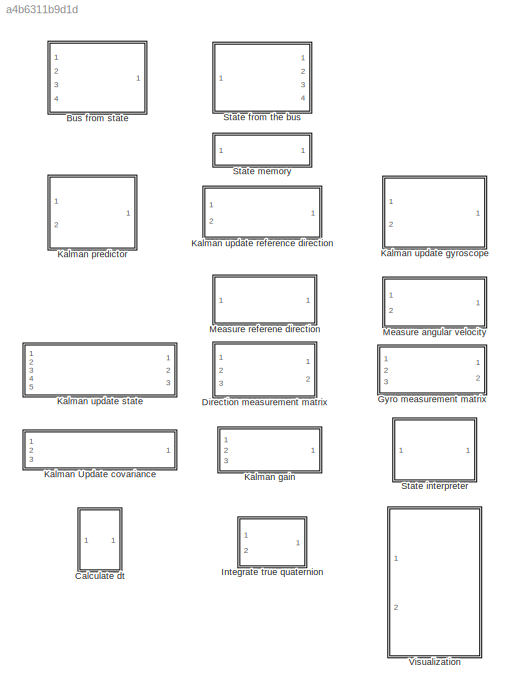
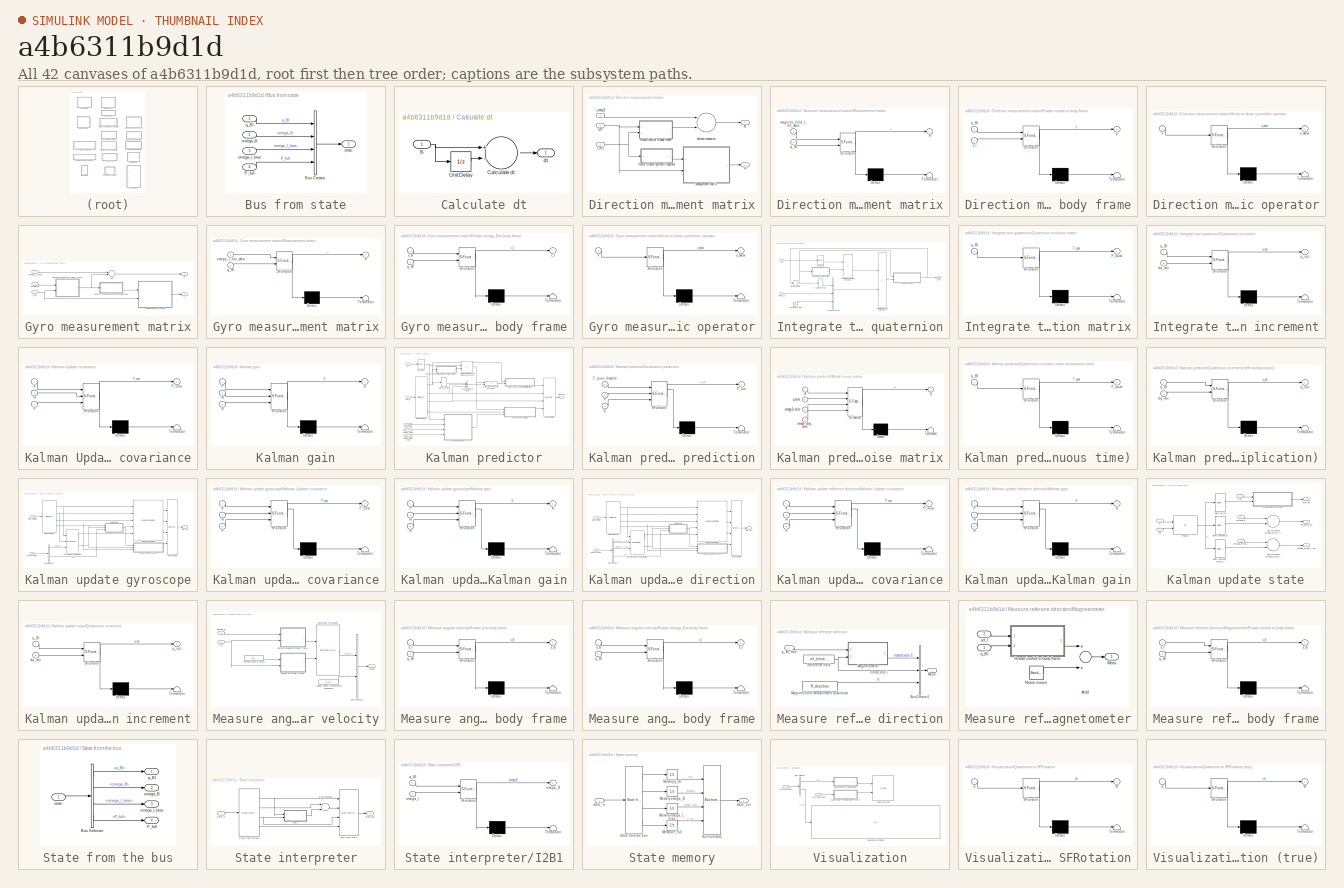
[diagram: thumbnail index - all 42 canvases of the model, root first then tree order]
MODEL slx_a4b6311b9d1d
KIND library
BLOCK [SubSystem] Bus from state
  Ports = [4, 1]
  RequestExecContextInheritance = off
BLOCK [BusCreator] Bus from state/Bus Creator
  DisplayOption = bar
  Ports = [4, 1]
BLOCK [Inport] Bus from state/P_full
  IconDisplay = Port number
  Port = 4
BLOCK [Inport] Bus from state/omega_B
  IconDisplay = Port number
  Port = 2
BLOCK [Inport] Bus from state/omega_I_bias
  IconDisplay = Port number
  Port = 3
BLOCK [Inport] Bus from state/q_BI
  IconDisplay = Port number
BLOCK [Outport] Bus from state/state
  IconDisplay = Port number
BLOCK [SubSystem] Calculate dt
  Ports = [1, 1]
  RequestExecContextInheritance = off
BLOCK [Sum] Calculate dt/Calculate dt
  InputSameDT = off
  Inputs = +-
  OutDataTypeStr = Inherit: Inherit via internal rule
  Ports = [2, 1]
  SaturateOnIntegerOverflow = off
BLOCK [UnitDelay] Calculate dt/Unit Delay
  InputProcessing = Elements as channels (sample based)
  SampleTime = -1
BLOCK [Outport] Calculate dt/dt
  IconDisplay = Port number
BLOCK [Inport] Calculate dt/ts
  IconDisplay = Port number
BLOCK [SubSystem] Direction measurement matrix
  Ports = [3, 2]
  RequestExecContextInheritance = off
BLOCK [Outport] Direction measurement matrix/H
  IconDisplay = Port number
  Port = 2
BLOCK [SubSystem] Direction measurement matrix/Measurement matrix
  ErrorFcn = Stateflow.Translate.translate
  PermitHierarchicalResolution = ExplicitOnly
  Ports = [2, 1]
  RequestExecContextInheritance = off
  SFBlockType = MATLAB Function
  TreatAsAtomicUnit = on
BLOCK [Demux] Direction measurement matrix/Measurement matrix/ Demux 
  Outputs = 1
  Ports = [1, 1]
BLOCK [S-Function] Direction measurement matrix/Measurement matrix/ SFunction 
  EnableBusSupport = on
  FunctionName = sf_sfun
  PortCounts = [2 2]
  Ports = [2, 2]
  Tag = Stateflow S-Function lib_gyro_fusion 17
BLOCK [Terminator] Direction measurement matrix/Measurement matrix/ Terminator 
BLOCK [Outport] Direction measurement matrix/Measurement matrix/H
  IconDisplay = Port number
BLOCK [Inport] Direction measurement matrix/Measurement matrix/magnetic_field_I_ref_skew
  IconDisplay = Port number
BLOCK [Inport] Direction measurement matrix/Measurement matrix/q_BI
  IconDisplay = Port number
  Port = 2
BLOCK [SubSystem] Direction measurement matrix/Rotate inertial to body frame
  ErrorFcn = Stateflow.Translate.translate
  PermitHierarchicalResolution = ExplicitOnly
  Ports = [2, 1]
  RequestExecContextInheritance = off
  SFBlockType = MATLAB Function
  TreatAsAtomicUnit = on
BLOCK [Demux] Direction measurement matrix/Rotate inertial to body frame/ Demux 
  Outputs = 1
  Ports = [1, 1]
BLOCK [S-Function] Direction measurement matrix/Rotate inertial to body frame/ SFunction 
  EnableBusSupport = on
  FunctionName = sf_sfun
  PortCounts = [2 2]
  Ports = [2, 2]
  Tag = Stateflow S-Function lib_gyro_fusion 7
BLOCK [Terminator] Direction measurement matrix/Rotate inertial to body frame/ Terminator 
BLOCK [Inport] Direction measurement matrix/Rotate inertial to body frame/q_BI
  IconDisplay = Port number
BLOCK [Inport] Direction measurement matrix/Rotate inertial to body frame/x_I
  IconDisplay = Port number
  Port = 2
BLOCK [Outport] Direction measurement matrix/Rotate inertial to body frame/y
  IconDisplay = Port number
BLOCK [SubSystem] Direction measurement matrix/Vector to skew symmetric operator
  ErrorFcn = Stateflow.Translate.translate
  PermitHierarchicalResolution = ExplicitOnly
  Ports = [1, 1]
  RequestExecContextInheritance = off
  SFBlockType = MATLAB Function
  TreatAsAtomicUnit = on
BLOCK [Demux] Direction measurement matrix/Vector to skew symmetric operator/ Demux 
  Outputs = 1
  Ports = [1, 1]
BLOCK [S-Function] Direction measurement matrix/Vector to skew symmetric operator/ SFunction 
  EnableBusSupport = on
  FunctionName = sf_sfun
  PortCounts = [1 2]
  Ports = [1, 2]
  Tag = Stateflow S-Function lib_gyro_fusion 8
BLOCK [Terminator] Direction measurement matrix/Vector to skew symmetric operator/ Terminator 
BLOCK [Inport] Direction measurement matrix/Vector to skew symmetric operator/v
  IconDisplay = Port number
BLOCK [Outport] Direction measurement matrix/Vector to skew symmetric operator/v_skew
  IconDisplay = Port number
BLOCK [Outport] Direction measurement matrix/dz
  IconDisplay = Port number
BLOCK [Sum] Direction measurement matrix/kalman innovation
  InputSameDT = off
  Inputs = +-
  OutDataTypeStr = Inherit: Inherit via internal rule
  Ports = [2, 1]
  SaturateOnIntegerOverflow = off
BLOCK [Inport] Direction measurement matrix/q_BI
  IconDisplay = Port number
BLOCK [Inport] Direction measurement matrix/r_meas_B
  IconDisplay = Port number
  Port = 2
BLOCK [Inport] Direction measurement matrix/r_ref_I
  IconDisplay = Port number
  Port = 3
BLOCK [SubSystem] Gyro measurement matrix
  Ports = [3, 2]
  RequestExecContextInheritance = off
BLOCK [Sum] Gyro measurement matrix/Add
  InputSameDT = off
  Inputs = +-
  OutDataTypeStr = Inherit: Inherit via internal rule
  Ports = [2, 1]
  SaturateOnIntegerOverflow = off
BLOCK [Outport] Gyro measurement matrix/H
  IconDisplay = Port number
  Port = 2
BLOCK [SubSystem] Gyro measurement matrix/Measurement matrix
  ErrorFcn = Stateflow.Translate.translate
  PermitHierarchicalResolution = ExplicitOnly
  Ports = [2, 1]
  RequestExecContextInheritance = off
  SFBlockType = MATLAB Function
  TreatAsAtomicUnit = on
BLOCK [Demux] Gyro measurement matrix/Measurement matrix/ Demux 
  Outputs = 1
  Ports = [1, 1]
BLOCK [S-Function] Gyro measurement matrix/Measurement matrix/ SFunction 
  EnableBusSupport = on
  FunctionName = sf_sfun
  PortCounts = [2 2]
  Ports = [2, 2]
  Tag = Stateflow S-Function lib_gyro_fusion 13
BLOCK [Terminator] Gyro measurement matrix/Measurement matrix/ Terminator 
BLOCK [Outport] Gyro measurement matrix/Measurement matrix/H
  IconDisplay = Port number
BLOCK [Inport] Gyro measurement matrix/Measurement matrix/omega_I_hat_skew
  IconDisplay = Port number
BLOCK [Inport] Gyro measurement matrix/Measurement matrix/q_BI
  IconDisplay = Port number
  Port = 2
BLOCK [SubSystem] Gyro measurement matrix/Rotate omega_B to body frame
  ErrorFcn = Stateflow.Translate.translate
  PermitHierarchicalResolution = ExplicitOnly
  Ports = [2, 1]
  RequestExecContextInheritance = off
  SFBlockType = MATLAB Function
  TreatAsAtomicUnit = on
BLOCK [Demux] Gyro measurement matrix/Rotate omega_B to body frame/ Demux 
  Outputs = 1
  Ports = [1, 1]
BLOCK [S-Function] Gyro measurement matrix/Rotate omega_B to body frame/ SFunction 
  EnableBusSupport = on
  FunctionName = sf_sfun
  PortCounts = [2 2]
  Ports = [2, 2]
  Tag = Stateflow S-Function lib_gyro_fusion 14
BLOCK [Terminator] Gyro measurement matrix/Rotate omega_B to body frame/ Terminator 
BLOCK [Inport] Gyro measurement matrix/Rotate omega_B to body frame/q_BI
  IconDisplay = Port number
  Port = 2
BLOCK [Inport] Gyro measurement matrix/Rotate omega_B to body frame/x_B
  IconDisplay = Port number
BLOCK [Outport] Gyro measurement matrix/Rotate omega_B to body frame/x_I
  IconDisplay = Port number
BLOCK [SubSystem] Gyro measurement matrix/Vector to skew symmetric operator
  ErrorFcn = Stateflow.Translate.translate
  PermitHierarchicalResolution = ExplicitOnly
  Ports = [1, 1]
  RequestExecContextInheritance = off
  SFBlockType = MATLAB Function
  TreatAsAtomicUnit = on
BLOCK [Demux] Gyro measurement matrix/Vector to skew symmetric operator/ Demux 
  Outputs = 1
  Ports = [1, 1]
BLOCK [S-Function] Gyro measurement matrix/Vector to skew symmetric operator/ SFunction 
  EnableBusSupport = on
  FunctionName = sf_sfun
  PortCounts = [1 2]
  Ports = [1, 2]
  Tag = Stateflow S-Function lib_gyro_fusion 15
BLOCK [Terminator] Gyro measurement matrix/Vector to skew symmetric operator/ Terminator 
BLOCK [Inport] Gyro measurement matrix/Vector to skew symmetric operator/v
  IconDisplay = Port number
BLOCK [Outport] Gyro measurement matrix/Vector to skew symmetric operator/v_skew
  IconDisplay = Port number
BLOCK [Outport] Gyro measurement matrix/dz
  IconDisplay = Port number
BLOCK [Inport] Gyro measurement matrix/omega_B
  IconDisplay = Port number
  Port = 2
BLOCK [Inport] Gyro measurement matrix/omega_I_meas
  IconDisplay = Port number
  Port = 3
BLOCK [Inport] Gyro measurement matrix/q_BI
  IconDisplay = Port number
BLOCK [SubSystem] Integrate true quaternion
  Ports = [2, 1]
  RequestExecContextInheritance = off
BLOCK [Reference] Integrate true quaternion/Calculate dt  REF=lib_gyro_fusion/Calculate dt  (lib defined in slx_a4b6311b9d1d)
  Ports = [1, 1]
  SourceBlock = lib_gyro_fusion/Calculate dt
  SourceType = SubSystem
BLOCK [Memory] Integrate true quaternion/Memory q_BI true
  X0 = q_BI_init
BLOCK [SubSystem] Integrate true quaternion/Quaternion evolution matrix
  ErrorFcn = Stateflow.Translate.translate
  PermitHierarchicalResolution = ExplicitOnly
  Ports = [1, 1]
  RequestExecContextInheritance = off
  SFBlockType = MATLAB Function
  TreatAsAtomicUnit = on
BLOCK [Demux] Integrate true quaternion/Quaternion evolution matrix/ Demux 
  Outputs = 1
  Ports = [1, 1]
BLOCK [S-Function] Integrate true quaternion/Quaternion evolution matrix/ SFunction 
  EnableBusSupport = on
  FunctionName = sf_sfun
  PortCounts = [1 2]
  Ports = [1, 2]
  Tag = Stateflow S-Function lib_gyro_fusion 4
BLOCK [Terminator] Integrate true quaternion/Quaternion evolution matrix/ Terminator 
BLOCK [Outport] Integrate true quaternion/Quaternion evolution matrix/F_quat
  IconDisplay = Port number
BLOCK [Inport] Integrate true quaternion/Quaternion evolution matrix/q_BI
  IconDisplay = Port number
BLOCK [SubSystem] Integrate true quaternion/Quaternion increment
  ErrorFcn = Stateflow.Translate.translate
  PermitHierarchicalResolution = ExplicitOnly
  Ports = [2, 1]
  RequestExecContextInheritance = off
  SFBlockType = MATLAB Function
  TreatAsAtomicUnit = on
BLOCK [Demux] Integrate true quaternion/Quaternion increment/ Demux 
  Outputs = 1
  Ports = [1, 1]
BLOCK [S-Function] Integrate true quaternion/Quaternion increment/ SFunction 
  EnableBusSupport = on
  FunctionName = sf_sfun
  PortCounts = [2 2]
  Ports = [2, 2]
  Tag = Stateflow S-Function lib_gyro_fusion 5
BLOCK [Terminator] Integrate true quaternion/Quaternion increment/ Terminator 
BLOCK [Inport] Integrate true quaternion/Quaternion increment/dq_vec
  IconDisplay = Port number
  Port = 2
BLOCK [Inport] Integrate true quaternion/Quaternion increment/q_BI
  IconDisplay = Port number
BLOCK [Outport] Integrate true quaternion/Quaternion increment/q_out
  IconDisplay = Port number
BLOCK [Product] Integrate true quaternion/Quaternion vector part increment
  InputSameDT = off
  Multiplication = Matrix(*)
  OutDataTypeStr = Inherit: Inherit via internal rule
  Ports = [2, 1]
  RndMeth = Floor
  SaturateOnIntegerOverflow = off
BLOCK [Product] Integrate true quaternion/Quaternion vector part increment1
  InputSameDT = off
  OutDataTypeStr = Inherit: Inherit via internal rule
  Ports = [2, 1]
  RndMeth = Floor
  SaturateOnIntegerOverflow = off
BLOCK [Selector] Integrate true quaternion/Select q_vector
  IndexOptions = Starting index (dialog)
  Indices = 2
  InputPortWidth = 4
  OutputSizes = 3
  Ports = [1, 1]
BLOCK [Concatenate] Integrate true quaternion/Vector Concatenate
  NumInputs = 3
  Ports = [3, 1]
BLOCK [Inport] Integrate true quaternion/omega_B
  IconDisplay = Port number
  Port = 2
BLOCK [Outport] Integrate true quaternion/q_BI
  IconDisplay = Port number
BLOCK [Inport] Integrate true quaternion/ts
  IconDisplay = Port number
BLOCK [Constant] Integrate true quaternion/zero omega_I_bias
  Value = [0; 0; 0]
BLOCK [SubSystem] Kalman Update covariance
  ErrorFcn = Stateflow.Translate.translate
  PermitHierarchicalResolution = ExplicitOnly
  Ports = [3, 1]
  RequestExecContextInheritance = off
  SFBlockType = MATLAB Function
  TreatAsAtomicUnit = on
BLOCK [Demux] Kalman Update covariance/ Demux 
  Outputs = 1
  Ports = [1, 1]
BLOCK [S-Function] Kalman Update covariance/ SFunction 
  EnableBusSupport = on
  FunctionName = sf_sfun
  PortCounts = [3 2]
  Ports = [3, 2]
  Tag = Stateflow S-Function lib_gyro_fusion 2
BLOCK [Terminator] Kalman Update covariance/ Terminator 
BLOCK [Inport] Kalman Update covariance/H
  IconDisplay = Port number
  Port = 2
BLOCK [Inport] Kalman Update covariance/K
  IconDisplay = Port number
BLOCK [Inport] Kalman Update covariance/P
  IconDisplay = Port number
  Port = 3
BLOCK [Outport] Kalman Update covariance/P_new
  IconDisplay = Port number
BLOCK [SubSystem] Kalman gain
  ErrorFcn = Stateflow.Translate.translate
  PermitHierarchicalResolution = ExplicitOnly
  Ports = [3, 1]
  RequestExecContextInheritance = off
  SFBlockType = MATLAB Function
  TreatAsAtomicUnit = on
BLOCK [Demux] Kalman gain/ Demux 
  Outputs = 1
  Ports = [1, 1]
BLOCK [S-Function] Kalman gain/ SFunction 
  EnableBusSupport = on
  FunctionName = sf_sfun
  PortCounts = [3 2]
  Ports = [3, 2]
  Tag = Stateflow S-Function lib_gyro_fusion 18
BLOCK [Terminator] Kalman gain/ Terminator 
BLOCK [Inport] Kalman gain/H
  IconDisplay = Port number
  Port = 2
BLOCK [Outport] Kalman gain/K
  IconDisplay = Port number
BLOCK [Inport] Kalman gain/P
  IconDisplay = Port number
BLOCK [Inport] Kalman gain/R
  IconDisplay = Port number
  Port = 3
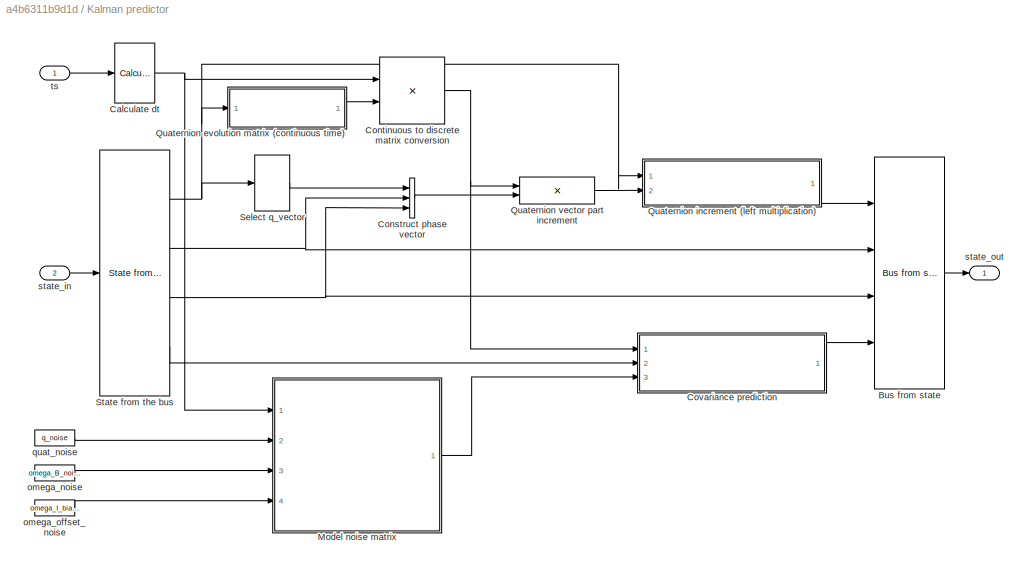
BLOCK [SubSystem] Kalman predictor
  Ports = [2, 1]
  RequestExecContextInheritance = off
BLOCK [Reference] Kalman predictor/Bus from state  REF=lib_gyro_fusion/Bus from state  (lib defined in slx_a4b6311b9d1d)
  Ports = [4, 1]
  SourceBlock = lib_gyro_fusion/Bus from state
  SourceType = SubSystem
BLOCK [Reference] Kalman predictor/Calculate dt  REF=lib_gyro_fusion/Calculate dt  (lib defined in slx_a4b6311b9d1d)
  Ports = [1, 1]
  SourceBlock = lib_gyro_fusion/Calculate dt
  SourceType = SubSystem
BLOCK [Concatenate] Kalman predictor/Construct phase vector
  NumInputs = 3
  Ports = [3, 1]
BLOCK [Product] Kalman predictor/Continuous to discrete matrix conversion
  InputSameDT = off
  OutDataTypeStr = Inherit: Inherit via internal rule
  Ports = [2, 1]
  RndMeth = Floor
  SaturateOnIntegerOverflow = off
BLOCK [SubSystem] Kalman predictor/Covariance prediction
  ErrorFcn = Stateflow.Translate.translate
  PermitHierarchicalResolution = ExplicitOnly
  Ports = [3, 1]
  RequestExecContextInheritance = off
  SFBlockType = MATLAB Function
  TreatAsAtomicUnit = on
BLOCK [Demux] Kalman predictor/Covariance prediction/ Demux 
  Outputs = 1
  Ports = [1, 1]
BLOCK [S-Function] Kalman predictor/Covariance prediction/ SFunction 
  EnableBusSupport = on
  FunctionName = sf_sfun
  PortCounts = [3 2]
  Ports = [3, 2]
  Tag = Stateflow S-Function lib_gyro_fusion 1
BLOCK [Terminator] Kalman predictor/Covariance prediction/ Terminator 
BLOCK [Inport] Kalman predictor/Covariance prediction/F_quat_discrete
  IconDisplay = Port number
BLOCK [Inport] Kalman predictor/Covariance prediction/P
  IconDisplay = Port number
  Port = 2
BLOCK [Outport] Kalman predictor/Covariance prediction/P_out
  IconDisplay = Port number
BLOCK [Inport] Kalman predictor/Covariance prediction/Q
  IconDisplay = Port number
  Port = 3
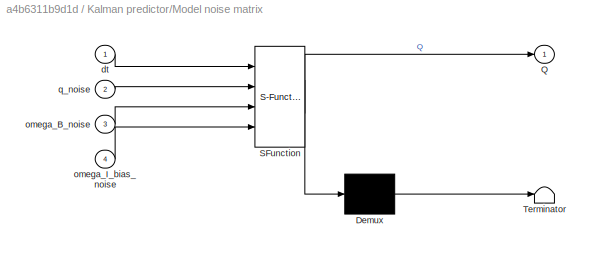
BLOCK [SubSystem] Kalman predictor/Model noise matrix
  ErrorFcn = Stateflow.Translate.translate
  PermitHierarchicalResolution = ExplicitOnly
  Ports = [4, 1]
  RequestExecContextInheritance = off
  SFBlockType = MATLAB Function
  TreatAsAtomicUnit = on
BLOCK [Demux] Kalman predictor/Model noise matrix/ Demux 
  Outputs = 1
  Ports = [1, 1]
BLOCK [S-Function] Kalman predictor/Model noise matrix/ SFunction 
  EnableBusSupport = on
  FunctionName = sf_sfun
  PortCounts = [4 2]
  Ports = [4, 2]
  Tag = Stateflow S-Function lib_gyro_fusion 3
BLOCK [Terminator] Kalman predictor/Model noise matrix/ Terminator 
BLOCK [Outport] Kalman predictor/Model noise matrix/Q
  IconDisplay = Port number
BLOCK [Inport] Kalman predictor/Model noise matrix/dt
  IconDisplay = Port number
BLOCK [Inport] Kalman predictor/Model noise matrix/omega_B_noise
  IconDisplay = Port number
  Port = 3
BLOCK [Inport] Kalman predictor/Model noise matrix/omega_I_bias_noise
  IconDisplay = Port number
  Port = 4
BLOCK [Inport] Kalman predictor/Model noise matrix/q_noise
  IconDisplay = Port number
  Port = 2
BLOCK [SubSystem] Kalman predictor/Quaternion evolution matrix (continuous time)
  ErrorFcn = Stateflow.Translate.translate
  PermitHierarchicalResolution = ExplicitOnly
  Ports = [1, 1]
  RequestExecContextInheritance = off
  SFBlockType = MATLAB Function
  TreatAsAtomicUnit = on
BLOCK [Demux] Kalman predictor/Quaternion evolution matrix (continuous time)/ Demux 
  Outputs = 1
  Ports = [1, 1]
BLOCK [S-Function] Kalman predictor/Quaternion evolution matrix (continuous time)/ SFunction 
  EnableBusSupport = on
  FunctionName = sf_sfun
  PortCounts = [1 2]
  Ports = [1, 2]
  Tag = Stateflow S-Function lib_gyro_fusion 11
BLOCK [Terminator] Kalman predictor/Quaternion evolution matrix (continuous time)/ Terminator 
BLOCK [Outport] Kalman predictor/Quaternion evolution matrix (continuous time)/F_quat
  IconDisplay = Port number
BLOCK [Inport] Kalman predictor/Quaternion evolution matrix (continuous time)/q_BI
  IconDisplay = Port number
BLOCK [SubSystem] Kalman predictor/Quaternion increment (left multiplication)
  ErrorFcn = Stateflow.Translate.translate
  PermitHierarchicalResolution = ExplicitOnly
  Ports = [2, 1]
  RequestExecContextInheritance = off
  SFBlockType = MATLAB Function
  TreatAsAtomicUnit = on
BLOCK [Demux] Kalman predictor/Quaternion increment (left multiplication)/ Demux 
  Outputs = 1
  Ports = [1, 1]
BLOCK [S-Function] Kalman predictor/Quaternion increment (left multiplication)/ SFunction 
  EnableBusSupport = on
  FunctionName = sf_sfun
  PortCounts = [2 2]
  Ports = [2, 2]
  Tag = Stateflow S-Function lib_gyro_fusion 12
BLOCK [Terminator] Kalman predictor/Quaternion increment (left multiplication)/ Terminator 
BLOCK [Inport] Kalman predictor/Quaternion increment (left multiplication)/dq_vec
  IconDisplay = Port number
  Port = 2
BLOCK [Inport] Kalman predictor/Quaternion increment (left multiplication)/q_BI
  IconDisplay = Port number
BLOCK [Outport] Kalman predictor/Quaternion increment (left multiplication)/q_out
  IconDisplay = Port number
BLOCK [Product] Kalman predictor/Quaternion vector part increment
  InputSameDT = off
  Multiplication = Matrix(*)
  OutDataTypeStr = Inherit: Inherit via internal rule
  Ports = [2, 1]
  RndMeth = Floor
  SaturateOnIntegerOverflow = off
BLOCK [Selector] Kalman predictor/Select q_vector
  IndexOptions = Starting index (dialog)
  Indices = 2
  InputPortWidth = 4
  OutputSizes = 3
  Ports = [1, 1]
BLOCK [Reference] Kalman predictor/State from the bus  REF=lib_gyro_fusion/State from the bus  (lib defined in slx_a4b6311b9d1d)
  Ports = [1, 4]
  SourceBlock = lib_gyro_fusion/State from the bus
  SourceType = SubSystem
BLOCK [Constant] Kalman predictor/omega_noise
  Value = omega_B_noise
BLOCK [Constant] Kalman predictor/omega_offset_noise
  Value = omega_I_bias_noise
BLOCK [Constant] Kalman predictor/quat_noise
  Value = q_noise
BLOCK [Inport] Kalman predictor/state_in
  IconDisplay = Port number
  Port = 2
BLOCK [Outport] Kalman predictor/state_out
  IconDisplay = Port number
BLOCK [Inport] Kalman predictor/ts
  IconDisplay = Port number
BLOCK [SubSystem] Kalman update gyroscope
  Ports = [2, 1]
  RequestExecContextInheritance = off
BLOCK [BusSelector] Kalman update gyroscope/Bus Selector1
  OutputSignals = omega_I,R
  Ports = [1, 2]
BLOCK [Reference] Kalman update gyroscope/Bus from state  REF=lib_gyro_fusion/Bus from state  (lib defined in slx_a4b6311b9d1d)
  Ports = [4, 1]
  SourceBlock = lib_gyro_fusion/Bus from state
  SourceType = SubSystem
BLOCK [Reference] Kalman update gyroscope/Gyro measurement matrix  REF=lib_gyro_fusion/Gyro measurement matrix  (lib defined in slx_a4b6311b9d1d)
  Ports = [3, 2]
  SourceBlock = lib_gyro_fusion/Gyro measurement matrix
  SourceType = SubSystem
BLOCK [SubSystem] Kalman update gyroscope/Kalman Update covariance
  ErrorFcn = Stateflow.Translate.translate
  PermitHierarchicalResolution = ExplicitOnly
  Ports = [3, 1]
  RequestExecContextInheritance = off
  SFBlockType = MATLAB Function
  TreatAsAtomicUnit = on
BLOCK [Demux] Kalman update gyroscope/Kalman Update covariance/ Demux 
  Outputs = 1
  Ports = [1, 1]
BLOCK [S-Function] Kalman update gyroscope/Kalman Update covariance/ SFunction 
  EnableBusSupport = on
  FunctionName = sf_sfun
  PortCounts = [3 2]
  Ports = [3, 2]
  Tag = Stateflow S-Function lib_gyro_fusion 16
BLOCK [Terminator] Kalman update gyroscope/Kalman Update covariance/ Terminator 
BLOCK [Inport] Kalman update gyroscope/Kalman Update covariance/H
  IconDisplay = Port number
  Port = 2
BLOCK [Inport] Kalman update gyroscope/Kalman Update covariance/K
  IconDisplay = Port number
BLOCK [Inport] Kalman update gyroscope/Kalman Update covariance/P
  IconDisplay = Port number
  Port = 3
BLOCK [Outport] Kalman update gyroscope/Kalman Update covariance/P_new
  IconDisplay = Port number
BLOCK [SubSystem] Kalman update gyroscope/Kalman gain
  ErrorFcn = Stateflow.Translate.translate
  PermitHierarchicalResolution = ExplicitOnly
  Ports = [3, 1]
  RequestExecContextInheritance = off
  SFBlockType = MATLAB Function
  TreatAsAtomicUnit = on
BLOCK [Demux] Kalman update gyroscope/Kalman gain/ Demux 
  Outputs = 1
  Ports = [1, 1]
BLOCK [S-Function] Kalman update gyroscope/Kalman gain/ SFunction 
  EnableBusSupport = on
  FunctionName = sf_sfun
  PortCounts = [3 2]
  Ports = [3, 2]
  Tag = Stateflow S-Function lib_gyro_fusion 19
BLOCK [Terminator] Kalman update gyroscope/Kalman gain/ Terminator 
BLOCK [Inport] Kalman update gyroscope/Kalman gain/H
  IconDisplay = Port number
  Port = 2
BLOCK [Outport] Kalman update gyroscope/Kalman gain/K
  IconDisplay = Port number
BLOCK [Inport] Kalman update gyroscope/Kalman gain/P
  IconDisplay = Port number
BLOCK [Inport] Kalman update gyroscope/Kalman gain/R
  IconDisplay = Port number
  Port = 3
BLOCK [Reference] Kalman update gyroscope/Kalman update state  REF=lib_gyro_fusion/Kalman update state  (lib defined in slx_a4b6311b9d1d)
  Ports = [5, 3]
  SourceBlock = lib_gyro_fusion/Kalman update state
  SourceType = SubSystem
BLOCK [Reference] Kalman update gyroscope/State from the bus  REF=lib_gyro_fusion/State from the bus  (lib defined in slx_a4b6311b9d1d)
  Ports = [1, 4]
  SourceBlock = lib_gyro_fusion/State from the bus
  SourceType = SubSystem
BLOCK [Inport] Kalman update gyroscope/measurement
  IconDisplay = Port number
  Port = 2
BLOCK [Inport] Kalman update gyroscope/state_estimate
  IconDisplay = Port number
BLOCK [Outport] Kalman update gyroscope/state_new
  IconDisplay = Port number
BLOCK [SubSystem] Kalman update reference direction
  Ports = [2, 1]
  RequestExecContextInheritance = off
BLOCK [BusSelector] Kalman update reference direction/Bus Selector1
  OutputSignals = measured_vector_B,reference_vector_I,R
  Ports = [1, 3]
BLOCK [Reference] Kalman update reference direction/Bus from state  REF=lib_gyro_fusion/Bus from state  (lib defined in slx_a4b6311b9d1d)
  Ports = [4, 1]
  SourceBlock = lib_gyro_fusion/Bus from state
  SourceType = SubSystem
BLOCK [Reference] Kalman update reference direction/Direction measurement matrix  REF=lib_gyro_fusion/Direction measurement matrix  (lib defined in slx_a4b6311b9d1d)
  Ports = [3, 2]
  SourceBlock = lib_gyro_fusion/Direction measurement matrix
  SourceType = SubSystem
BLOCK [SubSystem] Kalman update reference direction/Kalman Update covariance
  ErrorFcn = Stateflow.Translate.translate
  PermitHierarchicalResolution = ExplicitOnly
  Ports = [3, 1]
  RequestExecContextInheritance = off
  SFBlockType = MATLAB Function
  TreatAsAtomicUnit = on
BLOCK [Demux] Kalman update reference direction/Kalman Update covariance/ Demux 
  Outputs = 1
  Ports = [1, 1]
BLOCK [S-Function] Kalman update reference direction/Kalman Update covariance/ SFunction 
  EnableBusSupport = off
  FunctionName = sf_sfun
  PortCounts = [3 2]
  Ports = [3, 2]
  Tag = Stateflow S-Function lib_gyro_fusion 9
BLOCK [Terminator] Kalman update reference direction/Kalman Update covariance/ Terminator 
BLOCK [Inport] Kalman update reference direction/Kalman Update covariance/H
  IconDisplay = Port number
  Port = 2
BLOCK [Inport] Kalman update reference direction/Kalman Update covariance/K
  IconDisplay = Port number
BLOCK [Inport] Kalman update reference direction/Kalman Update covariance/P
  IconDisplay = Port number
  Port = 3
BLOCK [Outport] Kalman update reference direction/Kalman Update covariance/P_new
  IconDisplay = Port number
BLOCK [SubSystem] Kalman update reference direction/Kalman gain
  ErrorFcn = Stateflow.Translate.translate
  PermitHierarchicalResolution = ExplicitOnly
  Ports = [3, 1]
  RequestExecContextInheritance = off
  SFBlockType = MATLAB Function
  TreatAsAtomicUnit = on
BLOCK [Demux] Kalman update reference direction/Kalman gain/ Demux 
  Outputs = 1
  Ports = [1, 1]
BLOCK [S-Function] Kalman update reference direction/Kalman gain/ SFunction 
  EnableBusSupport = off
  FunctionName = sf_sfun
  PortCounts = [3 2]
  Ports = [3, 2]
  Tag = Stateflow S-Function lib_gyro_fusion 10
BLOCK [Terminator] Kalman update reference direction/Kalman gain/ Terminator 
BLOCK [Inport] Kalman update reference direction/Kalman gain/H
  IconDisplay = Port number
  Port = 2
BLOCK [Outport] Kalman update reference direction/Kalman gain/K
  IconDisplay = Port number
BLOCK [Inport] Kalman update reference direction/Kalman gain/P
  IconDisplay = Port number
BLOCK [Inport] Kalman update reference direction/Kalman gain/R
  IconDisplay = Port number
  Port = 3
BLOCK [Reference] Kalman update reference direction/Kalman update state  REF=lib_gyro_fusion/Kalman update state  (lib defined in slx_a4b6311b9d1d)
  Ports = [5, 3]
  SourceBlock = lib_gyro_fusion/Kalman update state
  SourceType = SubSystem
BLOCK [Reference] Kalman update reference direction/State from the bus  REF=lib_gyro_fusion/State from the bus  (lib defined in slx_a4b6311b9d1d)
  Ports = [1, 4]
  SourceBlock = lib_gyro_fusion/State from the bus
  SourceType = SubSystem
BLOCK [Inport] Kalman update reference direction/measurement
  IconDisplay = Port number
  Port = 2
BLOCK [Inport] Kalman update reference direction/state_estimate
  IconDisplay = Port number
BLOCK [Outport] Kalman update reference direction/state_new
  IconDisplay = Port number
BLOCK [SubSystem] Kalman update state
  Ports = [5, 3]
  RequestExecContextInheritance = off
BLOCK [Sum] Kalman update state/Add correction omega_offset_I
  InputSameDT = off
  OutDataTypeStr = Inherit: Inherit via internal rule
  Ports = [2, 1]
  SaturateOnIntegerOverflow = off
BLOCK [Sum] Kalman update state/Add correction omega_offset_I1
  InputSameDT = off
  OutDataTypeStr = Inherit: Inherit via internal rule
  Ports = [2, 1]
  SaturateOnIntegerOverflow = off
BLOCK [Inport] Kalman update state/K
  IconDisplay = Port number
  Port = 4
BLOCK [Product] Kalman update state/Product
  InputSameDT = off
  Multiplication = Matrix(*)
  OutDataTypeStr = Inherit: Inherit via internal rule
  Ports = [2, 1]
  RndMeth = Floor
  SaturateOnIntegerOverflow = off
BLOCK [SubSystem] Kalman update state/Quaternion increment
  ErrorFcn = Stateflow.Translate.translate
  PermitHierarchicalResolution = ExplicitOnly
  Ports = [2, 1]
  RequestExecContextInheritance = off
  SFBlockType = MATLAB Function
  TreatAsAtomicUnit = on
BLOCK [Demux] Kalman update state/Quaternion increment/ Demux 
  Outputs = 1
  Ports = [1, 1]
BLOCK [S-Function] Kalman update state/Quaternion increment/ SFunction 
  EnableBusSupport = on
  FunctionName = sf_sfun
  PortCounts = [2 2]
  Ports = [2, 2]
  Tag = Stateflow S-Function lib_gyro_fusion 6
BLOCK [Terminator] Kalman update state/Quaternion increment/ Terminator 
BLOCK [Inport] Kalman update state/Quaternion increment/dq_vec
  IconDisplay = Port number
  Port = 2
BLOCK [Inport] Kalman update state/Quaternion increment/q_BI
  IconDisplay = Port number
BLOCK [Outport] Kalman update state/Quaternion increment/q_out
  IconDisplay = Port number
BLOCK [Selector] Kalman update state/Select domega_B
  Indices = 4:6
  InputPortWidth = 9
  OutputSizes = 3
  Ports = [1, 1]
BLOCK [Selector] Kalman update state/Select domega_offset_I
  Indices = 7:9
  InputPortWidth = 9
  OutputSizes = 3
  Ports = [1, 1]
BLOCK [Selector] Kalman update state/Select dq_vec
  Indices = 1:3
  InputPortWidth = 9
  OutputSizes = 3
  Ports = [1, 1]
BLOCK [Inport] Kalman update state/dz
  IconDisplay = Port number
  Port = 5
BLOCK [Inport] Kalman update state/omega_B
  IconDisplay = Port number
  Port = 2
BLOCK [Outport] Kalman update state/omega_B_out
  IconDisplay = Port number
  Port = 2
BLOCK [Inport] Kalman update state/omega_offset_I
  IconDisplay = Port number
  Port = 3
BLOCK [Outport] Kalman update state/omega_offset_I_out
  IconDisplay = Port number
  Port = 3
BLOCK [Inport] Kalman update state/q_BI
  IconDisplay = Port number
BLOCK [Outport] Kalman update state/q_BI_out
  IconDisplay = Port number
BLOCK [SubSystem] Measure angular velocity
  Ports = [2, 1]
  RequestExecContextInheritance = off
BLOCK [Constant] Measure angular velocity/Angular velocity measurenent covariance
  Value = R_gyro
BLOCK [BusCreator] Measure angular velocity/Bus Creator1
  DisplayOption = bar
  Inputs = 2
  Ports = [2, 1]
BLOCK [Constant] Measure angular velocity/Inertial frame g vector
  Value = acc_I
BLOCK [Outport] Measure angular velocity/Meas
  IconDisplay = Port number
BLOCK [SubSystem] Measure angular velocity/Rotate g to body frame
  ErrorFcn = Stateflow.Translate.translate
  PermitHierarchicalResolution = ExplicitOnly
  Ports = [2, 1]
  RequestExecContextInheritance = off
  SFBlockType = MATLAB Function
  TreatAsAtomicUnit = on
BLOCK [Demux] Measure angular velocity/Rotate g to body frame/ Demux 
  Outputs = 1
  Ports = [1, 1]
BLOCK [S-Function] Measure angular velocity/Rotate g to body frame/ SFunction 
  EnableBusSupport = on
  FunctionName = sf_sfun
  PortCounts = [2 2]
  Ports = [2, 2]
  Tag = Stateflow S-Function lib_gyro_fusion 20
BLOCK [Terminator] Measure angular velocity/Rotate g to body frame/ Terminator 
BLOCK [Inport] Measure angular velocity/Rotate g to body frame/q_BI
  IconDisplay = Port number
  Port = 2
BLOCK [Outport] Measure angular velocity/Rotate g to body frame/x_B
  IconDisplay = Port number
BLOCK [Inport] Measure angular velocity/Rotate g to body frame/x_I
  IconDisplay = Port number
BLOCK [SubSystem] Measure angular velocity/Rotate omega_B to body frame
  ErrorFcn = Stateflow.Translate.translate
  PermitHierarchicalResolution = ExplicitOnly
  Ports = [2, 1]
  RequestExecContextInheritance = off
  SFBlockType = MATLAB Function
  TreatAsAtomicUnit = on
BLOCK [Demux] Measure angular velocity/Rotate omega_B to body frame/ Demux 
  Outputs = 1
  Ports = [1, 1]
BLOCK [S-Function] Measure angular velocity/Rotate omega_B to body frame/ SFunction 
  EnableBusSupport = on
  FunctionName = sf_sfun
  PortCounts = [2 2]
  Ports = [2, 2]
  Tag = Stateflow S-Function lib_gyro_fusion 21
BLOCK [Terminator] Measure angular velocity/Rotate omega_B to body frame/ Terminator 
BLOCK [Inport] Measure angular velocity/Rotate omega_B to body frame/q_BI
  IconDisplay = Port number
  Port = 2
BLOCK [Inport] Measure angular velocity/Rotate omega_B to body frame/x_B
  IconDisplay = Port number
BLOCK [Outport] Measure angular velocity/Rotate omega_B to body frame/x_I
  IconDisplay = Port number
BLOCK [Reference] Measure angular velocity/Three-axis Gyroscope  REF=aerolibnav/Three-axis Gyroscope
  Ports = [2, 1]
  SourceBlock = aerolibnav/Three-axis Gyroscope
  SourceType = Three-axis Gyroscope
  dtype_g = on
  g_Ts = t_step
  g_bias = gyro_mean_bias
  g_pow = gyro_noise
  g_rand = on
  g_sat = [-inf  -inf  -inf  inf inf inf]
  g_seeds = gyro_seeds
  g_sen = gyro_g_sensitivity_bias
  g_sf_cc = gyro_scale_factor
  w_g = gyro_natrual_freq
  z_g = gyro_damping_factor
BLOCK [Inport] Measure angular velocity/omega_B
  IconDisplay = Port number
  Port = 2
BLOCK [Inport] Measure angular velocity/q_BI
  IconDisplay = Port number
BLOCK [SubSystem] Measure referene direction
  Ports = [1, 1]
  RequestExecContextInheritance = off
BLOCK [BusCreator] Measure referene direction/Bus Creator1
  DisplayOption = bar
  Inputs = 3
  Ports = [3, 1]
BLOCK [Constant] Measure referene direction/Magnetic field measurement covariance
  Value = R_direction
BLOCK [SubSystem] Measure referene direction/Magnetometer
  Ports = [2, 1]
  RequestExecContextInheritance = off
BLOCK [Sum] Measure referene direction/Magnetometer/Add
  InputSameDT = off
  OutDataTypeStr = Inherit: Inherit via internal rule
  Ports = [2, 1]
  SaturateOnIntegerOverflow = off
BLOCK [Outport] Measure referene direction/Magnetometer/Meas
  IconDisplay = Port number
BLOCK [Reference] Measure referene direction/Magnetometer/Noise source  REF=simulink/Sources/Band-Limited
White Noise
  Cov = measurement_noise_power
  Ports = [0, 1]
  SourceBlock = simulink/Sources/Band-Limited\nWhite Noise
  SourceType = Band-Limited White Noise.
  Ts = measurement_sample_rate
  VectorParams1D = on
  seed = source_seeds
BLOCK [SubSystem] Measure referene direction/Magnetometer/Rotate inertial to body frame
  ErrorFcn = Stateflow.Translate.translate
  PermitHierarchicalResolution = ExplicitOnly
  Ports = [2, 1]
  RequestExecContextInheritance = off
  SFBlockType = MATLAB Function
  TreatAsAtomicUnit = on
BLOCK [Demux] Measure referene direction/Magnetometer/Rotate inertial to body frame/ Demux 
  Outputs = 1
  Ports = [1, 1]
BLOCK [S-Function] Measure referene direction/Magnetometer/Rotate inertial to body frame/ SFunction 
  EnableBusSupport = on
  FunctionName = sf_sfun
  PortCounts = [2 2]
  Ports = [2, 2]
  Tag = Stateflow S-Function lib_gyro_fusion 27
BLOCK [Terminator] Measure referene direction/Magnetometer/Rotate inertial to body frame/ Terminator 
BLOCK [Inport] Measure referene direction/Magnetometer/Rotate inertial to body frame/q_BI
  IconDisplay = Port number
  Port = 2
BLOCK [Outport] Measure referene direction/Magnetometer/Rotate inertial to body frame/x_B
  IconDisplay = Port number
BLOCK [Inport] Measure referene direction/Magnetometer/Rotate inertial to body frame/x_I
  IconDisplay = Port number
BLOCK [Inport] Measure referene direction/Magnetometer/q_BI
  IconDisplay = Port number
BLOCK [Inport] Measure referene direction/Magnetometer/ref_I
  IconDisplay = Port number
  Port = 2
BLOCK [Outport] Measure referene direction/Meas
  IconDisplay = Port number
BLOCK [Constant] Measure referene direction/Reference field
  Value = ref_direction
BLOCK [Inport] Measure referene direction/q_BI_true
  IconDisplay = Port number
BLOCK [SubSystem] State from the bus
  Ports = [1, 4]
  RequestExecContextInheritance = off
BLOCK [BusSelector] State from the bus/Bus Selector
  OutputSignals = q_BI,omega_B,omega_I_bias,P_full
  Ports = [1, 4]
BLOCK [Outport] State from the bus/P_full
  IconDisplay = Port number
  Port = 4
BLOCK [Outport] State from the bus/omega_B
  IconDisplay = Port number
  Port = 2
BLOCK [Outport] State from the bus/omega_I_bias
  IconDisplay = Port number
  Port = 3
BLOCK [Outport] State from the bus/q_BI
  IconDisplay = Port number
BLOCK [Inport] State from the bus/state
  IconDisplay = Port number
BLOCK [SubSystem] State interpreter
  Ports = [1, 1]
  RequestExecContextInheritance = off
BLOCK [Sum] State interpreter/Bias removal
  InputSameDT = off
  Inputs = +-
  OutDataTypeStr = Inherit: Inherit via internal rule
  Ports = [2, 1]
  SaturateOnIntegerOverflow = off
BLOCK [Reference] State interpreter/Bus from state  REF=lib_gyro_fusion/Bus from state  (lib defined in slx_a4b6311b9d1d)
  Ports = [4, 1]
  SourceBlock = lib_gyro_fusion/Bus from state
  SourceType = SubSystem
BLOCK [SubSystem] State interpreter/I2B1
  ErrorFcn = Stateflow.Translate.translate
  PermitHierarchicalResolution = ExplicitOnly
  Ports = [2, 1]
  RequestExecContextInheritance = off
  SFBlockType = MATLAB Function
  TreatAsAtomicUnit = on
BLOCK [Demux] State interpreter/I2B1/ Demux 
  Outputs = 1
  Ports = [1, 1]
BLOCK [S-Function] State interpreter/I2B1/ SFunction 
  EnableBusSupport = on
  FunctionName = sf_sfun
  PortCounts = [2 2]
  Ports = [2, 2]
  Tag = Stateflow S-Function lib_gyro_fusion 22
BLOCK [Terminator] State interpreter/I2B1/ Terminator 
BLOCK [Outport] State interpreter/I2B1/omega_B
  IconDisplay = Port number
BLOCK [Inport] State interpreter/I2B1/omega_I
  IconDisplay = Port number
  Port = 2
BLOCK [Inport] State interpreter/I2B1/q_BI
  IconDisplay = Port number
BLOCK [Reference] State interpreter/State from the bus  REF=lib_gyro_fusion/State from the bus  (lib defined in slx_a4b6311b9d1d)
  Ports = [1, 4]
  SourceBlock = lib_gyro_fusion/State from the bus
  SourceType = SubSystem
BLOCK [Inport] State interpreter/state in
  IconDisplay = Port number
BLOCK [Outport] State interpreter/state_out
  IconDisplay = Port number
BLOCK [SubSystem] State memory
  Ports = [1, 1]
  RequestExecContextInheritance = off
BLOCK [Reference] State memory/Bus from state  REF=lib_gyro_fusion/Bus from state  (lib defined in slx_a4b6311b9d1d)
  Ports = [4, 1]
  SourceBlock = lib_gyro_fusion/Bus from state
  SourceType = SubSystem
BLOCK [UnitDelay] State memory/Memory P_full
  InitialCondition = P_full_init
  InputProcessing = Elements as channels (sample based)
  SampleTime = -1
BLOCK [UnitDelay] State memory/Memory omega_B
  InitialCondition = omega_B_init
  InputProcessing = Elements as channels (sample based)
  SampleTime = -1
BLOCK [UnitDelay] State memory/Memory omega_I_bias
  InitialCondition = omega_I_bias_init
  InputProcessing = Elements as channels (sample based)
  SampleTime = -1
BLOCK [UnitDelay] State memory/Memory q_BI
  InitialCondition = q_BI_init
  InputProcessing = Elements as channels (sample based)
  SampleTime = -1
BLOCK [Reference] State memory/State from the bus  REF=lib_gyro_fusion/State from the bus  (lib defined in slx_a4b6311b9d1d)
  Ports = [1, 4]
  SourceBlock = lib_gyro_fusion/State from the bus
  SourceType = SubSystem
BLOCK [Inport] State memory/state_in
  IconDisplay = Port number
BLOCK [Outport] State memory/state_out
  IconDisplay = Port number
BLOCK [SubSystem] Visualization
  Ports = [2]
  RequestExecContextInheritance = off
BLOCK [BusSelector] Visualization/Bus Selector
  OutputSignals = q_BI,P_full
  Ports = [1, 2]
BLOCK [Display] Visualization/Covariance estimate
  Decimation = 1
  Ports = [1]
BLOCK [SubSystem] Visualization/Quaternion to SFRotation
  ErrorFcn = Stateflow.Translate.translate
  PermitHierarchicalResolution = ExplicitOnly
  Ports = [1, 1]
  RequestExecContextInheritance = off
  SFBlockType = MATLAB Function
  TreatAsAtomicUnit = on
BLOCK [SubSystem] Visualization/Quaternion to SFRotation (true)
  ErrorFcn = Stateflow.Translate.translate
  PermitHierarchicalResolution = ExplicitOnly
  Ports = [1, 1]
  RequestExecContextInheritance = off
  SFBlockType = MATLAB Function
  TreatAsAtomicUnit = on
BLOCK [Demux] Visualization/Quaternion to SFRotation (true)/ Demux 
  Outputs = 1
  Ports = [1, 1]
BLOCK [S-Function] Visualization/Quaternion to SFRotation (true)/ SFunction 
  EnableBusSupport = on
  FunctionName = sf_sfun
  PortCounts = [1 2]
  Ports = [1, 2]
  Tag = Stateflow S-Function lib_gyro_fusion 24
BLOCK [Terminator] Visualization/Quaternion to SFRotation (true)/ Terminator 
BLOCK [Inport] Visualization/Quaternion to SFRotation (true)/q
  IconDisplay = Port number
BLOCK [Outport] Visualization/Quaternion to SFRotation (true)/sfr
  IconDisplay = Port number
BLOCK [Demux] Visualization/Quaternion to SFRotation/ Demux 
  Outputs = 1
  Ports = [1, 1]
BLOCK [S-Function] Visualization/Quaternion to SFRotation/ SFunction 
  EnableBusSupport = on
  FunctionName = sf_sfun
  PortCounts = [1 2]
  Ports = [1, 2]
  Tag = Stateflow S-Function lib_gyro_fusion 23
BLOCK [Terminator] Visualization/Quaternion to SFRotation/ Terminator 
BLOCK [Inport] Visualization/Quaternion to SFRotation/q
  IconDisplay = Port number
BLOCK [Outport] Visualization/Quaternion to SFRotation/sfr
  IconDisplay = Port number
BLOCK [Reference] Visualization/Vehicle attitude  REF=vrlib/VR Sink
  AllowVariableSize = off
  AutoView = off
  FieldsWritten = Estimated_car.rotation.4.1.1.double#True_car.rotation.4.1.1.double
  InstantiateOnLoad = on
  Ports = [2]
  RemoteChange = off
  RemoteView = off
  SampleTime = 0.1
  SourceBlock = vrlib/VR Sink
  SourceType = Virtual Reality Sink
  VideoDimensions = []
  ViewEnable = on
  WorldFileName = ins.wrl
BLOCK [Inport] Visualization/state_estimate
  IconDisplay = Port number
  Port = 2
BLOCK [Inport] Visualization/true_quaternion
  IconDisplay = Port number
LINE Bus from state/Bus Creator:1 -> Bus from state/state:1
LINE Bus from state/P_full:1 -> Bus from state/Bus Creator:4
LINE Bus from state/omega_B:1 -> Bus from state/Bus Creator:2
LINE Bus from state/omega_I_bias:1 -> Bus from state/Bus Creator:3
LINE Bus from state/q_BI:1 -> Bus from state/Bus Creator:1
LINE Calculate dt/Calculate dt:1 -> Calculate dt/dt:1
LINE Calculate dt/Unit Delay:1 -> Calculate dt/Calculate dt:2
NET Calculate dt/ts:1 -> Calculate dt/Calculate dt:1, Calculate dt/Unit Delay:1
LINE Direction measurement matrix/Measurement matrix:1 -> Direction measurement matrix/H:1
LINE Direction measurement matrix/Rotate inertial to body frame:1 -> Direction measurement matrix/kalman innovation:2
LINE Direction measurement matrix/Vector to skew symmetric operator:1 -> Direction measurement matrix/Measurement matrix:1
LINE Direction measurement matrix/kalman innovation:1 -> Direction measurement matrix/dz:1
NET Direction measurement matrix/q_BI:1 -> Direction measurement matrix/Measurement matrix:2, Direction measurement matrix/Rotate inertial to body frame:1
LINE Direction measurement matrix/r_meas_B:1 -> Direction measurement matrix/kalman innovation:1
NET Direction measurement matrix/r_ref_I:1 -> Direction measurement matrix/Rotate inertial to body frame:2, Direction measurement matrix/Vector to skew symmetric operator:1
LINE Gyro measurement matrix/Add:1 -> Gyro measurement matrix/dz:1
LINE Gyro measurement matrix/Measurement matrix:1 -> Gyro measurement matrix/H:1
NET Gyro measurement matrix/Rotate omega_B to body frame:1 -> Gyro measurement matrix/Add:2, Gyro measurement matrix/Vector to skew symmetric operator:1
LINE Gyro measurement matrix/Vector to skew symmetric operator:1 -> Gyro measurement matrix/Measurement matrix:1
LINE Gyro measurement matrix/omega_B:1 -> Gyro measurement matrix/Rotate omega_B to body frame:1
LINE Gyro measurement matrix/omega_I_meas:1 -> Gyro measurement matrix/Add:1
NET Gyro measurement matrix/q_BI:1 -> Gyro measurement matrix/Measurement matrix:2, Gyro measurement matrix/Rotate omega_B to body frame:2
LINE Integrate true quaternion/Calculate dt:1 -> Integrate true quaternion/Quaternion vector part increment1:1
NET Integrate true quaternion/Memory q_BI true:1 -> Integrate true quaternion/Quaternion evolution matrix:1, Integrate true quaternion/Quaternion increment:1, Integrate true quaternion/Select q_vector:1
LINE Integrate true quaternion/Quaternion evolution matrix:1 -> Integrate true quaternion/Quaternion vector part increment1:2
NET Integrate true quaternion/Quaternion increment:1 -> Integrate true quaternion/Memory q_BI true:1, Integrate true quaternion/q_BI:1
LINE Integrate true quaternion/Quaternion vector part increment1:1 -> Integrate true quaternion/Quaternion vector part increment:1
LINE Integrate true quaternion/Quaternion vector part increment:1 -> Integrate true quaternion/Quaternion increment:2
LINE Integrate true quaternion/Select q_vector:1 -> Integrate true quaternion/Vector Concatenate:1
LINE Integrate true quaternion/Vector Concatenate:1 -> Integrate true quaternion/Quaternion vector part increment:2
LINE Integrate true quaternion/omega_B:1 -> Integrate true quaternion/Vector Concatenate:2
LINE Integrate true quaternion/ts:1 -> Integrate true quaternion/Calculate dt:1
LINE Integrate true quaternion/zero omega_I_bias:1 -> Integrate true quaternion/Vector Concatenate:3
LINE Kalman predictor/Bus from state:1 -> Kalman predictor/state_out:1
NET Kalman predictor/Calculate dt:1 -> Kalman predictor/Continuous to discrete matrix conversion:1, Kalman predictor/Model noise matrix:1
LINE Kalman predictor/Construct phase vector:1 -> Kalman predictor/Quaternion vector part increment:2
NET Kalman predictor/Continuous to discrete matrix conversion:1 -> Kalman predictor/Covariance prediction:1, Kalman predictor/Quaternion vector part increment:1
LINE Kalman predictor/Covariance prediction:1 -> Kalman predictor/Bus from state:4
LINE Kalman predictor/Model noise matrix:1 -> Kalman predictor/Covariance prediction:3
LINE Kalman predictor/Quaternion evolution matrix (continuous time):1 -> Kalman predictor/Continuous to discrete matrix conversion:2
LINE Kalman predictor/Quaternion increment (left multiplication):1 -> Kalman predictor/Bus from state:1
LINE Kalman predictor/Quaternion vector part increment:1 -> Kalman predictor/Quaternion increment (left multiplication):2
LINE Kalman predictor/Select q_vector:1 -> Kalman predictor/Construct phase vector:1
NET Kalman predictor/State from the bus:1 -> Kalman predictor/Quaternion evolution matrix (continuous time):1, Kalman predictor/Quaternion increment (left multiplication):1, Kalman predictor/Select q_vector:1
NET Kalman predictor/State from the bus:2 -> Kalman predictor/Bus from state:2, Kalman predictor/Construct phase vector:2
NET Kalman predictor/State from the bus:3 -> Kalman predictor/Bus from state:3, Kalman predictor/Construct phase vector:3
LINE Kalman predictor/State from the bus:4 -> Kalman predictor/Covariance prediction:2
LINE Kalman predictor/omega_noise:1 -> Kalman predictor/Model noise matrix:3
LINE Kalman predictor/omega_offset_noise:1 -> Kalman predictor/Model noise matrix:4
LINE Kalman predictor/quat_noise:1 -> Kalman predictor/Model noise matrix:2
LINE Kalman predictor/state_in:1 -> Kalman predictor/State from the bus:1
LINE Kalman predictor/ts:1 -> Kalman predictor/Calculate dt:1
LINE Kalman update gyroscope/Bus Selector1:1 -> Kalman update gyroscope/Gyro measurement matrix:3
LINE Kalman update gyroscope/Bus Selector1:2 -> Kalman update gyroscope/Kalman gain:3
LINE Kalman update gyroscope/Bus from state:1 -> Kalman update gyroscope/state_new:1
LINE Kalman update gyroscope/Gyro measurement matrix:1 -> Kalman update gyroscope/Kalman update state:5
NET Kalman update gyroscope/Gyro measurement matrix:2 -> Kalman update gyroscope/Kalman Update covariance:2, Kalman update gyroscope/Kalman gain:2
LINE Kalman update gyroscope/Kalman Update covariance:1 -> Kalman update gyroscope/Bus from state:4
NET Kalman update gyroscope/Kalman gain:1 -> Kalman update gyroscope/Kalman Update covariance:1, Kalman update gyroscope/Kalman update state:4
LINE Kalman update gyroscope/Kalman update state:1 -> Kalman update gyroscope/Bus from state:1
LINE Kalman update gyroscope/Kalman update state:2 -> Kalman update gyroscope/Bus from state:2
LINE Kalman update gyroscope/Kalman update state:3 -> Kalman update gyroscope/Bus from state:3
NET Kalman update gyroscope/State from the bus:1 -> Kalman update gyroscope/Gyro measurement matrix:1, Kalman update gyroscope/Kalman update state:1
NET Kalman update gyroscope/State from the bus:2 -> Kalman update gyroscope/Gyro measurement matrix:2, Kalman update gyroscope/Kalman update state:2
LINE Kalman update gyroscope/State from the bus:3 -> Kalman update gyroscope/Kalman update state:3
NET Kalman update gyroscope/State from the bus:4 -> Kalman update gyroscope/Kalman Update covariance:3, Kalman update gyroscope/Kalman gain:1
LINE Kalman update gyroscope/measurement:1 -> Kalman update gyroscope/Bus Selector1:1
LINE Kalman update gyroscope/state_estimate:1 -> Kalman update gyroscope/State from the bus:1
LINE Kalman update reference direction/Bus Selector1:1 -> Kalman update reference direction/Direction measurement matrix:2
LINE Kalman update reference direction/Bus Selector1:2 -> Kalman update reference direction/Direction measurement matrix:3
LINE Kalman update reference direction/Bus Selector1:3 -> Kalman update reference direction/Kalman gain:3
LINE Kalman update reference direction/Bus from state:1 -> Kalman update reference direction/state_new:1
LINE Kalman update reference direction/Direction measurement matrix:1 -> Kalman update reference direction/Kalman update state:5
NET Kalman update reference direction/Direction measurement matrix:2 -> Kalman update reference direction/Kalman Update covariance:2, Kalman update reference direction/Kalman gain:2
LINE Kalman update reference direction/Kalman Update covariance:1 -> Kalman update reference direction/Bus from state:4
NET Kalman update reference direction/Kalman gain:1 -> Kalman update reference direction/Kalman Update covariance:1, Kalman update reference direction/Kalman update state:4
LINE Kalman update reference direction/Kalman update state:1 -> Kalman update reference direction/Bus from state:1
LINE Kalman update reference direction/Kalman update state:2 -> Kalman update reference direction/Bus from state:2
LINE Kalman update reference direction/Kalman update state:3 -> Kalman update reference direction/Bus from state:3
NET Kalman update reference direction/State from the bus:1 -> Kalman update reference direction/Direction measurement matrix:1, Kalman update reference direction/Kalman update state:1
LINE Kalman update reference direction/State from the bus:2 -> Kalman update reference direction/Kalman update state:2
LINE Kalman update reference direction/State from the bus:3 -> Kalman update reference direction/Kalman update state:3
NET Kalman update reference direction/State from the bus:4 -> Kalman update reference direction/Kalman Update covariance:3, Kalman update reference direction/Kalman gain:1
LINE Kalman update reference direction/measurement:1 -> Kalman update reference direction/Bus Selector1:1
LINE Kalman update reference direction/state_estimate:1 -> Kalman update reference direction/State from the bus:1
LINE Kalman update state/Add correction omega_offset_I1:1 -> Kalman update state/omega_B_out:1
LINE Kalman update state/Add correction omega_offset_I:1 -> Kalman update state/omega_offset_I_out:1
LINE Kalman update state/K:1 -> Kalman update state/Product:1
NET Kalman update state/Product:1 -> Kalman update state/Select domega_B:1, Kalman update state/Select domega_offset_I:1, Kalman update state/Select dq_vec:1
LINE Kalman update state/Quaternion increment:1 -> Kalman update state/q_BI_out:1
LINE Kalman update state/Select domega_B:1 -> Kalman update state/Add correction omega_offset_I1:2
LINE Kalman update state/Select domega_offset_I:1 -> Kalman update state/Add correction omega_offset_I:2
LINE Kalman update state/Select dq_vec:1 -> Kalman update state/Quaternion increment:2
LINE Kalman update state/dz:1 -> Kalman update state/Product:2
LINE Kalman update state/omega_B:1 -> Kalman update state/Add correction omega_offset_I1:1
LINE Kalman update state/omega_offset_I:1 -> Kalman update state/Add correction omega_offset_I:1
LINE Kalman update state/q_BI:1 -> Kalman update state/Quaternion increment:1
LINE Measure angular velocity/Angular velocity measurenent covariance:1 -> Measure angular velocity/Bus Creator1:2
LINE Measure angular velocity/Bus Creator1:1 -> Measure angular velocity/Meas:1
LINE Measure angular velocity/Inertial frame g vector:1 -> Measure angular velocity/Rotate g to body frame:1
LINE Measure angular velocity/Rotate g to body frame:1 -> Measure angular velocity/Three-axis Gyroscope:2
LINE Measure angular velocity/Rotate omega_B to body frame:1 -> Measure angular velocity/Three-axis Gyroscope:1
LINE Measure angular velocity/Three-axis Gyroscope:1 -> Measure angular velocity/Bus Creator1:1
LINE Measure angular velocity/omega_B:1 -> Measure angular velocity/Rotate omega_B to body frame:1
NET Measure angular velocity/q_BI:1 -> Measure angular velocity/Rotate g to body frame:2, Measure angular velocity/Rotate omega_B to body frame:2
LINE Measure referene direction/Bus Creator1:1 -> Measure referene direction/Meas:1
LINE Measure referene direction/Magnetic field measurement covariance:1 -> Measure referene direction/Bus Creator1:3
LINE Measure referene direction/Magnetometer/Add:1 -> Measure referene direction/Magnetometer/Meas:1
LINE Measure referene direction/Magnetometer/Noise source:1 -> Measure referene direction/Magnetometer/Add:2
LINE Measure referene direction/Magnetometer/Rotate inertial to body frame:1 -> Measure referene direction/Magnetometer/Add:1
LINE Measure referene direction/Magnetometer/q_BI:1 -> Measure referene direction/Magnetometer/Rotate inertial to body frame:2
LINE Measure referene direction/Magnetometer/ref_I:1 -> Measure referene direction/Magnetometer/Rotate inertial to body frame:1
LINE Measure referene direction/Magnetometer:1 -> Measure referene direction/Bus Creator1:1
NET Measure referene direction/Reference field:1 -> Measure referene direction/Bus Creator1:2, Measure referene direction/Magnetometer:2
LINE Measure referene direction/q_BI_true:1 -> Measure referene direction/Magnetometer:1
LINE State from the bus/Bus Selector:1 -> State from the bus/q_BI:1
LINE State from the bus/Bus Selector:2 -> State from the bus/omega_B:1
LINE State from the bus/Bus Selector:3 -> State from the bus/omega_I_bias:1
LINE State from the bus/Bus Selector:4 -> State from the bus/P_full:1
LINE State from the bus/state:1 -> State from the bus/Bus Selector:1
LINE State interpreter/Bias removal:1 -> State interpreter/Bus from state:2
LINE State interpreter/Bus from state:1 -> State interpreter/state_out:1
LINE State interpreter/I2B1:1 -> State interpreter/Bias removal:2
NET State interpreter/State from the bus:1 -> State interpreter/Bus from state:1, State interpreter/I2B1:1
LINE State interpreter/State from the bus:2 -> State interpreter/Bias removal:1
NET State interpreter/State from the bus:3 -> State interpreter/Bus from state:3, State interpreter/I2B1:2
LINE State interpreter/State from the bus:4 -> State interpreter/Bus from state:4
LINE State interpreter/state in:1 -> State interpreter/State from the bus:1
LINE State memory/Bus from state:1 -> State memory/state_out:1
LINE State memory/Memory P_full:1 -> State memory/Bus from state:4
LINE State memory/Memory omega_B:1 -> State memory/Bus from state:2
LINE State memory/Memory omega_I_bias:1 -> State memory/Bus from state:3
LINE State memory/Memory q_BI:1 -> State memory/Bus from state:1
LINE State memory/State from the bus:1 -> State memory/Memory q_BI:1
LINE State memory/State from the bus:2 -> State memory/Memory omega_B:1
LINE State memory/State from the bus:3 -> State memory/Memory omega_I_bias:1
LINE State memory/State from the bus:4 -> State memory/Memory P_full:1
LINE State memory/state_in:1 -> State memory/State from the bus:1
LINE Visualization/Bus Selector:1 -> Visualization/Quaternion to SFRotation:1
LINE Visualization/Bus Selector:2 -> Visualization/Covariance estimate:1
LINE Visualization/Quaternion to SFRotation (true):1 -> Visualization/Vehicle attitude:2
LINE Visualization/Quaternion to SFRotation:1 -> Visualization/Vehicle attitude:1
LINE Visualization/state_estimate:1 -> Visualization/Bus Selector:1
LINE Visualization/true_quaternion:1 -> Visualization/Quaternion to SFRotation (true):1
note: NET lines group one-source signal fan-out (src -> all destinations, sorted); 1:1 wires keep LINE
